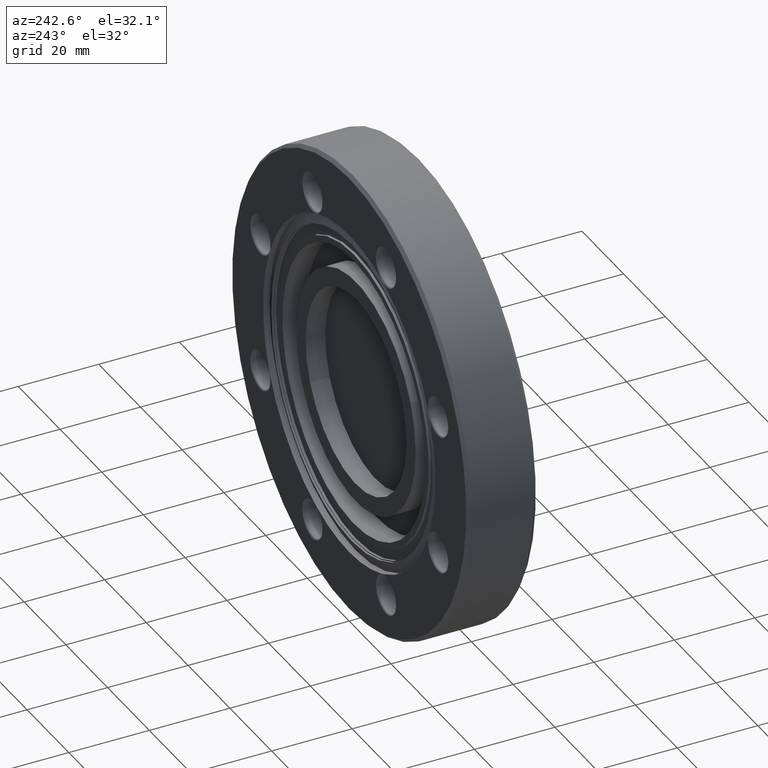
[diagram: clean part render]
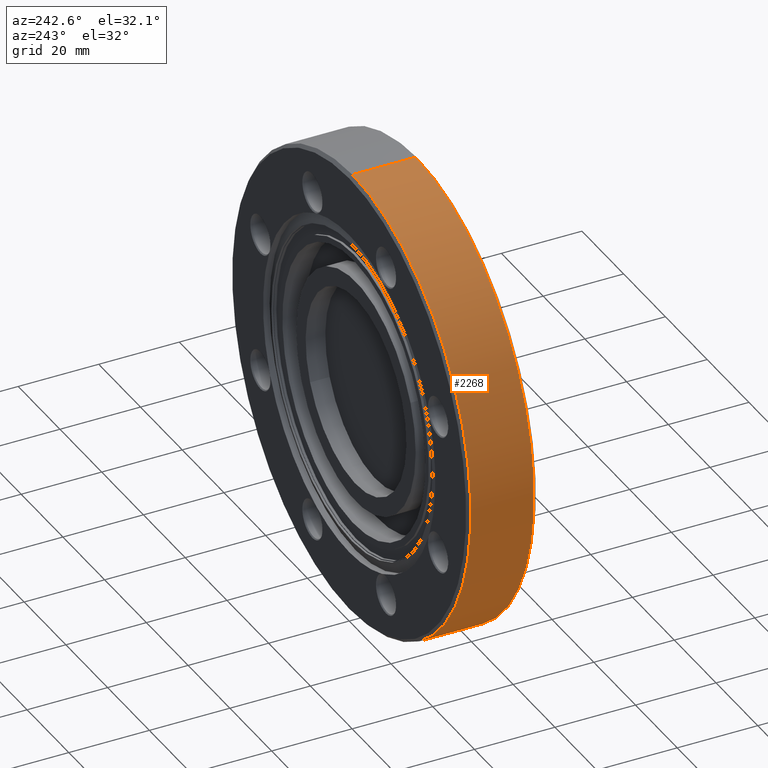
[diagram: same view with one face highlighted and labeled with its STEP entity id]
A machine part, auxiliary view. The second image highlights one B-rep face of the part: STEP entity #2268.
In plain terms, the highlighted cylindrical surface (partial cylindrical patch) has radius 56.769 mm, axis along (-0, 1, -0).
Its self-contained STEP definition (entity closure, byte-faithful):
#60 = CARTESIAN_POINT ( 'NONE',  ( 0.000000000000000000, 0.000000000000000000, 0.000000000000000000 ) ) ;
#158 = CARTESIAN_POINT ( 'NONE',  ( 0.000000000000000000, -0.6500000000000001332, 2.234999999999999876 ) ) ;
#192 = EDGE_LOOP ( 'NONE', ( #1272, #1807, #568, #1451 ) ) ;
#261 = EDGE_CURVE ( 'NONE', #2551, #1234, #1210, .T. ) ;
#476 = CIRCLE ( 'NONE', #2769, 2.234999999999999876 ) ;
#556 = EDGE_CURVE ( 'NONE', #915, #1234, #1320, .T. ) ;
#568 = ORIENTED_EDGE ( 'NONE', *, *, #556, .T. ) ;
#600 = CARTESIAN_POINT ( 'NONE',  ( 2.737085596094334151E-16, 0.000000000000000000, -2.234999999999999876 ) ) ;
#659 = DIRECTION ( 'NONE',  ( -0.000000000000000000, 1.000000000000000000, -0.000000000000000000 ) ) ;
#904 = EDGE_CURVE ( 'NONE', #2742, #2551, #2683, .T. ) ;
#915 = VERTEX_POINT ( 'NONE', #158 ) ;
#947 = EDGE_CURVE ( 'NONE', #2742, #915, #476, .T. ) ;
#1073 = DIRECTION ( 'NONE',  ( 0.000000000000000000, 0.000000000000000000, 1.000000000000000000 ) ) ;
#1115 = CARTESIAN_POINT ( 'NONE',  ( 0.000000000000000000, 0.000000000000000000, 2.234999999999999876 ) ) ;
#1210 = CIRCLE ( 'NONE', #1641, 2.234999999999999876 ) ;
#1225 = FACE_OUTER_BOUND ( 'NONE', #192, .T. ) ;
#1234 = VERTEX_POINT ( 'NONE', #2284 ) ;
#1272 = ORIENTED_EDGE ( 'NONE', *, *, #904, .F. ) ;
#1320 = LINE ( 'NONE', #1115, #2211 ) ;
#1385 = DIRECTION ( 'NONE',  ( 0.000000000000000000, 0.000000000000000000, 1.000000000000000000 ) ) ;
#1451 = ORIENTED_EDGE ( 'NONE', *, *, #261, .F. ) ;
#1564 = CARTESIAN_POINT ( 'NONE',  ( 0.000000000000000000, -0.6500000000000001332, 0.000000000000000000 ) ) ;
#1641 = AXIS2_PLACEMENT_3D ( 'NONE', #2738, #659, #1385 ) ;
#1710 = DIRECTION ( 'NONE',  ( -0.000000000000000000, 1.000000000000000000, -0.000000000000000000 ) ) ;
#1804 = AXIS2_PLACEMENT_3D ( 'NONE', #60, #1710, #2637 ) ;
#1807 = ORIENTED_EDGE ( 'NONE', *, *, #947, .T. ) ;
#2135 = CYLINDRICAL_SURFACE ( 'NONE', #1804, 2.234999999999999876 ) ;
#2211 = VECTOR ( 'NONE', #2235, 39.37007874015748143 ) ;
#2235 = DIRECTION ( 'NONE',  ( -0.000000000000000000, 1.000000000000000000, -0.000000000000000000 ) ) ;
#2268 = ADVANCED_FACE ( 'NONE', ( #1225 ), #2135, .T. ) ;
#2284 = CARTESIAN_POINT ( 'NONE',  ( 2.737085596094334151E-16, -0.02999999999999999889, 2.234999999999999876 ) ) ;
#2325 = VECTOR ( 'NONE', #2963, 39.37007874015748143 ) ;
#2551 = VERTEX_POINT ( 'NONE', #2867 ) ;
#2637 = DIRECTION ( 'NONE',  ( 0.000000000000000000, 0.000000000000000000, 1.000000000000000000 ) ) ;
#2683 = LINE ( 'NONE', #600, #2325 ) ;
#2738 = CARTESIAN_POINT ( 'NONE',  ( 0.000000000000000000, -0.02999999999999999889, 0.000000000000000000 ) ) ;
#2742 = VERTEX_POINT ( 'NONE', #2860 ) ;
#2769 = AXIS2_PLACEMENT_3D ( 'NONE', #1564, #2894, #1073 ) ;
#2860 = CARTESIAN_POINT ( 'NONE',  ( 2.737085596094334151E-16, -0.6500000000000001332, -2.234999999999999876 ) ) ;
#2867 = CARTESIAN_POINT ( 'NONE',  ( 0.000000000000000000, -0.02999999999999999889, -2.234999999999999876 ) ) ;
#2894 = DIRECTION ( 'NONE',  ( -0.000000000000000000, 1.000000000000000000, -0.000000000000000000 ) ) ;
#2963 = DIRECTION ( 'NONE',  ( -0.000000000000000000, 1.000000000000000000, -0.000000000000000000 ) ) ;